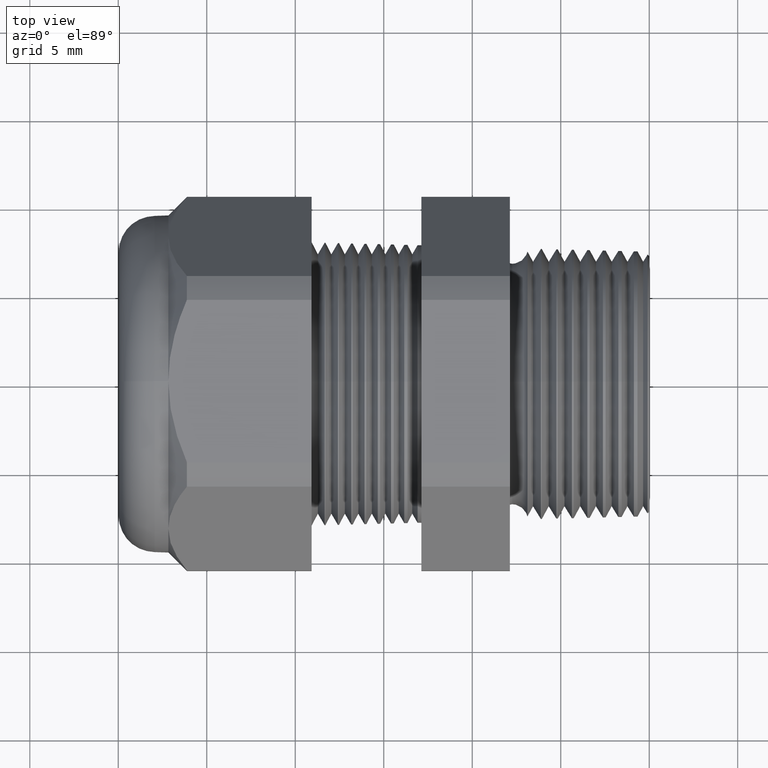
[diagram: clean part render]
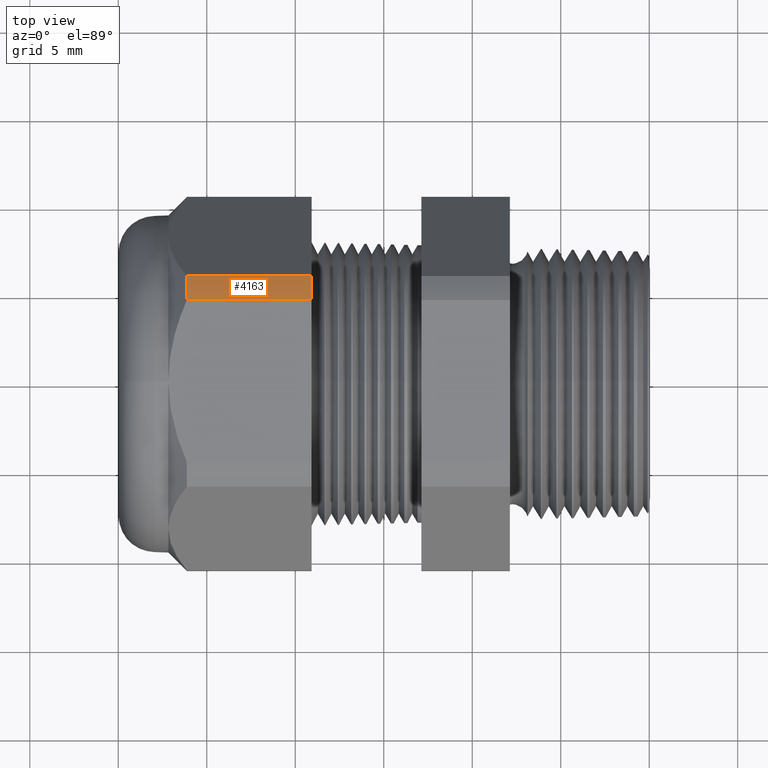
[diagram: same view with one face highlighted and labeled with its STEP entity id]
A machine part, top view. The second image highlights one B-rep face of the part: STEP entity #4163.
In plain terms, the highlighted cylindrical surface (partial cylindrical patch) has radius 10.5727 mm, axis along (-1, 0, 0).
Its self-contained STEP definition (entity closure, byte-faithful):
#3834 = DIRECTION ( 'NONE',  ( 0.0000000000000000000, 0.0000000000000000000, -1.000000000000000000 ) ) ;
#3835 = DIRECTION ( 'NONE',  ( 1.000000000000000000, 0.0000000000000000000, 0.0000000000000000000 ) ) ;
#3836 = CARTESIAN_POINT ( 'NONE',  ( -1.028513779527559200, 0.0000000000000000000, 0.0000000000000000000 ) ) ;
#3837 = AXIS2_PLACEMENT_3D ( 'NONE', #3836, #3835, #3834 ) ;
#3838 = CIRCLE ( 'NONE', #3837, 0.4162499999999999500 ) ;
#3844 = CARTESIAN_POINT ( 'NONE',  ( -1.028513779527559200, 0.1806628420566886700, 0.3749999999999999400 ) ) ;
#3877 = CARTESIAN_POINT ( 'NONE',  ( -1.028513779527559200, 0.2344281053908206000, 0.3439586107409877100 ) ) ;
#3878 = CARTESIAN_POINT ( 'NONE',  ( -0.7508661417322833900, 0.2344281053908206000, 0.3439586107409877100 ) ) ;
#3879 = DIRECTION ( 'NONE',  ( -1.000000000000000000, 0.0000000000000000000, 0.0000000000000000000 ) ) ;
#3880 = VECTOR ( 'NONE', #3879, 39.37007874015748100 ) ;
#3881 = CARTESIAN_POINT ( 'NONE',  ( 0.0000000000000000000, 0.2344281053908206000, 0.3439586107409877100 ) ) ;
#3882 = DIRECTION ( 'NONE',  ( 0.0000000000000000000, 0.0000000000000000000, 1.000000000000000000 ) ) ;
#3883 = DIRECTION ( 'NONE',  ( -1.000000000000000000, 0.0000000000000000000, 0.0000000000000000000 ) ) ;
#3884 = CARTESIAN_POINT ( 'NONE',  ( 0.0000000000000000000, 0.0000000000000000000, 0.0000000000000000000 ) ) ;
#3885 = AXIS2_PLACEMENT_3D ( 'NONE', #3884, #3883, #3882 ) ;
#3886 = LINE ( 'NONE', #3881, #3880 ) ;
#3887 = CYLINDRICAL_SURFACE ( 'NONE', #3885, 0.4162499999999999500 ) ;
#3888 = FACE_OUTER_BOUND ( 'NONE', #4158, .T. ) ;
#3891 = LINE ( 'NONE', #3951, #3950 ) ;
#3896 = CARTESIAN_POINT ( 'NONE',  ( -0.7508661417322833900, 0.1806628420566887000, 0.3749999999999999400 ) ) ;
#3897 = DIRECTION ( 'NONE',  ( 0.0000000000000000000, 0.0000000000000000000, -1.000000000000000000 ) ) ;
#3898 = DIRECTION ( 'NONE',  ( 1.000000000000000000, 0.0000000000000000000, 0.0000000000000000000 ) ) ;
#3899 = CARTESIAN_POINT ( 'NONE',  ( -0.7508661417322833900, 0.0000000000000000000, 0.0000000000000000000 ) ) ;
#3900 = AXIS2_PLACEMENT_3D ( 'NONE', #3899, #3898, #3897 ) ;
#3901 = CIRCLE ( 'NONE', #3900, 0.4162499999999999500 ) ;
#3949 = DIRECTION ( 'NONE',  ( -1.000000000000000000, 0.0000000000000000000, 0.0000000000000000000 ) ) ;
#3950 = VECTOR ( 'NONE', #3949, 39.37007874015748100 ) ;
#3951 = CARTESIAN_POINT ( 'NONE',  ( 0.0000000000000000000, 0.1806628420566887000, 0.3749999999999999400 ) ) ;
#4155 = VERTEX_POINT ( 'NONE', #3844 ) ;
#4158 = EDGE_LOOP ( 'NONE', ( #4159, #4160, #4183, #4181 ) ) ;
#4159 = ORIENTED_EDGE ( 'NONE', *, *, #4164, .T. ) ;
#4160 = ORIENTED_EDGE ( 'NONE', *, *, #4161, .T. ) ;
#4161 = EDGE_CURVE ( 'NONE', #4168, #4155, #3838, .T. ) ;
#4163 = ADVANCED_FACE ( 'NONE', ( #3888 ), #3887, .T. ) ;
#4164 = EDGE_CURVE ( 'NONE', #4165, #4168, #3886, .T. ) ;
#4165 = VERTEX_POINT ( 'NONE', #3878 ) ;
#4168 = VERTEX_POINT ( 'NONE', #3877 ) ;
#4181 = ORIENTED_EDGE ( 'NONE', *, *, #4185, .F. ) ;
#4183 = ORIENTED_EDGE ( 'NONE', *, *, #4188, .F. ) ;
#4185 = EDGE_CURVE ( 'NONE', #4165, #4186, #3901, .T. ) ;
#4186 = VERTEX_POINT ( 'NONE', #3896 ) ;
#4188 = EDGE_CURVE ( 'NONE', #4186, #4155, #3891, .T. ) ;